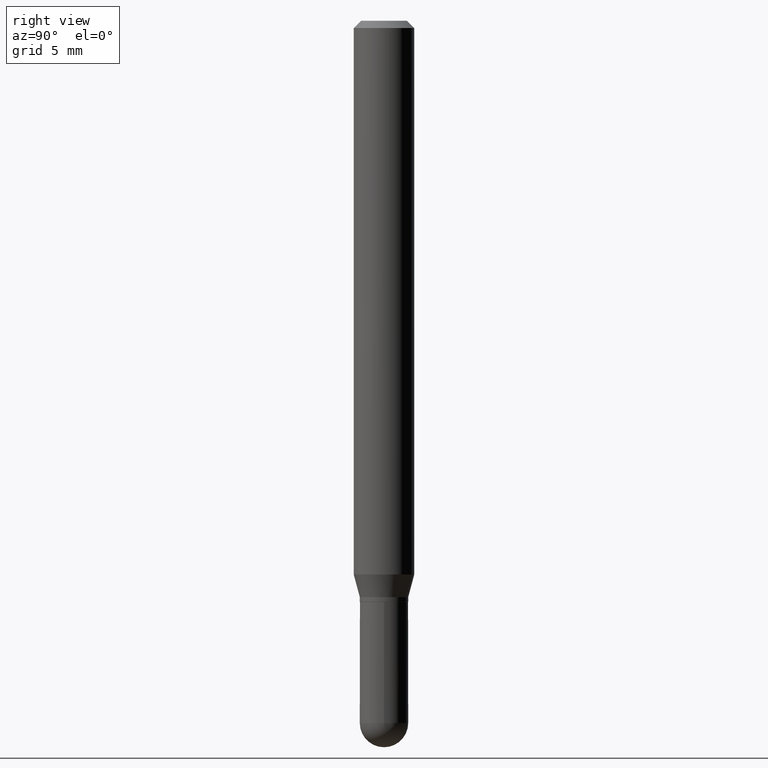
[diagram: clean part render]
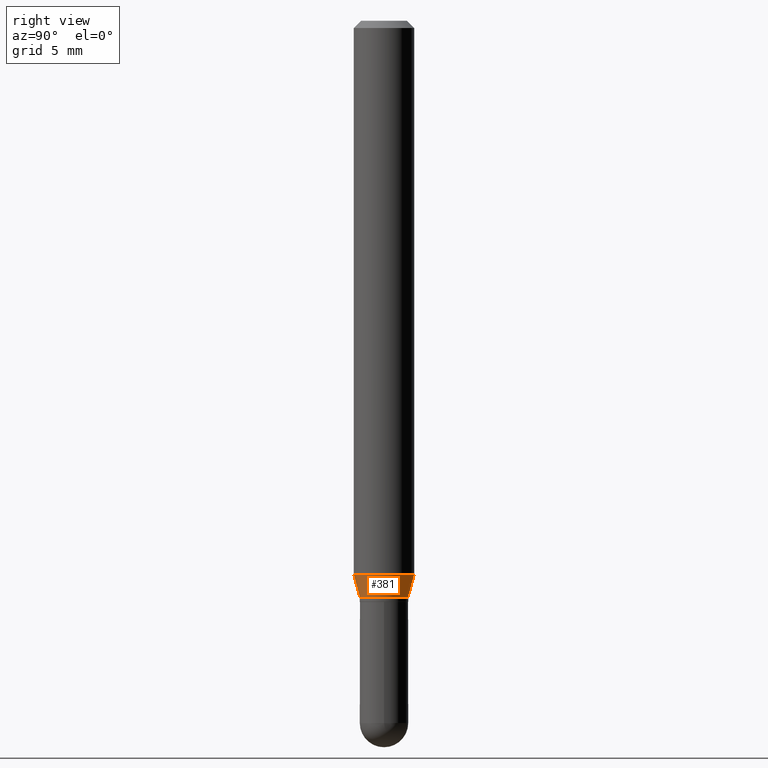
[diagram: same view with one face highlighted and labeled with its STEP entity id]
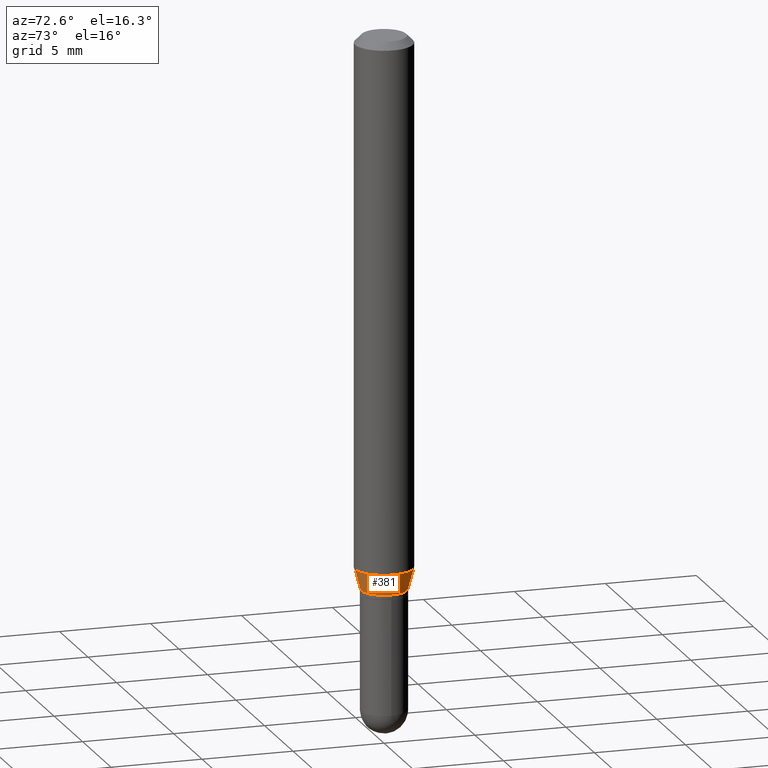
[diagram: same view with one face highlighted and labeled with its STEP entity id]
A machine part, right view. The second image highlights one B-rep face of the part: STEP entity #381.
A second angle (auxiliary view) of the same face is appended — the face is thin or edge-on in the first view.
In plain terms, the highlighted conical surface has half-angle 15 deg.
Its self-contained STEP definition (entity closure, byte-faithful):
#28 = CARTESIAN_POINT ( 'NONE',  ( 2.910058457887396519E-29, -4.154933567585457695E-15, -1.190000000000000391 ) ) ;
#31 = EDGE_CURVE ( 'NONE', #36, #235, #461, .T. ) ;
#33 = CARTESIAN_POINT ( 'NONE',  ( 4.440892098500904235E-16, 0.06249999999999599626, -1.143349364905390075 ) ) ;
#36 = VERTEX_POINT ( 'NONE', #147 ) ;
#42 = CONICAL_SURFACE ( 'NONE', #144, 0.05000000000000006523, 0.2617993877991499629 ) ;
#50 = LINE ( 'NONE', #211, #439 ) ;
#51 = CIRCLE ( 'NONE', #105, 0.05000000000000006523 ) ;
#53 = EDGE_CURVE ( 'NONE', #36, #332, #51, .T. ) ;
#56 = DIRECTION ( 'NONE',  ( -2.445427275535626406E-29, 3.491540813097021947E-15, 1.000000000000000000 ) ) ;
#67 = DIRECTION ( 'NONE',  ( -2.445427275535626406E-29, 3.491540813097021947E-15, 1.000000000000000000 ) ) ;
#87 = VECTOR ( 'NONE', #177, 39.37007874015748143 ) ;
#104 = ORIENTED_EDGE ( 'NONE', *, *, #498, .T. ) ;
#105 = AXIS2_PLACEMENT_3D ( 'NONE', #328, #354, #208 ) ;
#144 = AXIS2_PLACEMENT_3D ( 'NONE', #28, #56, #228 ) ;
#147 = CARTESIAN_POINT ( 'NONE',  ( -3.491481338842845914E-16, -0.05000000000000422162, -1.190000000000000391 ) ) ;
#174 = CIRCLE ( 'NONE', #458, 0.06250000000000000000 ) ;
#177 = DIRECTION ( 'NONE',  ( -1.807323732225328167E-15, -0.2588190451025179084, 0.9659258262890690894 ) ) ;
#181 = CARTESIAN_POINT ( 'NONE',  ( -4.364351673553637142E-16, -0.06250000000000399680, -1.143349364905389409 ) ) ;
#208 = DIRECTION ( 'NONE',  ( -6.982962677686265133E-15, -1.000000000000000000, 2.731847993664259669E-15 ) ) ;
#211 = CARTESIAN_POINT ( 'NONE',  ( 3.552713678800795963E-16, 0.04999999999999590883, -1.190000000000000613 ) ) ;
#228 = DIRECTION ( 'NONE',  ( -6.982962677686265133E-15, -1.000000000000000000, 2.731847993664259669E-15 ) ) ;
#235 = VERTEX_POINT ( 'NONE', #181 ) ;
#263 = VERTEX_POINT ( 'NONE', #33 ) ;
#271 = CARTESIAN_POINT ( 'NONE',  ( 3.996802888650851578E-16, 0.04999999999999590883, -1.190000000000000613 ) ) ;
#293 = ORIENTED_EDGE ( 'NONE', *, *, #53, .T. ) ;
#314 = EDGE_LOOP ( 'NONE', ( #293, #104, #346, #422 ) ) ;
#328 = CARTESIAN_POINT ( 'NONE',  ( 2.910058457887396519E-29, -4.154933567585457695E-15, -1.190000000000000391 ) ) ;
#332 = VERTEX_POINT ( 'NONE', #271 ) ;
#346 = ORIENTED_EDGE ( 'NONE', *, *, #379, .F. ) ;
#354 = DIRECTION ( 'NONE',  ( -2.445427275535626406E-29, 3.491540813097021947E-15, 1.000000000000000000 ) ) ;
#362 = DIRECTION ( 'NONE',  ( 1.839019923739597949E-15, 0.2588190451025246253, 0.9659258262890670910 ) ) ;
#379 = EDGE_CURVE ( 'NONE', #235, #263, #174, .T. ) ;
#381 = ADVANCED_FACE ( 'NONE', ( #406 ), #42, .T. ) ;
#406 = FACE_OUTER_BOUND ( 'NONE', #314, .T. ) ;
#410 = DIRECTION ( 'NONE',  ( -6.982962677686265922E-15, -1.000000000000000000, 4.370956789862821150E-15 ) ) ;
#422 = ORIENTED_EDGE ( 'NONE', *, *, #31, .F. ) ;
#439 = VECTOR ( 'NONE', #362, 39.37007874015748854 ) ;
#449 = CARTESIAN_POINT ( 'NONE',  ( -3.491481338842845914E-16, -0.05000000000000422162, -1.190000000000000391 ) ) ;
#458 = AXIS2_PLACEMENT_3D ( 'NONE', #499, #67, #410 ) ;
#461 = LINE ( 'NONE', #449, #87 ) ;
#498 = EDGE_CURVE ( 'NONE', #332, #263, #50, .T. ) ;
#499 = CARTESIAN_POINT ( 'NONE',  ( 2.795977722405976257E-29, -3.992050971195729009E-15, -1.143349364905389853 ) ) ;